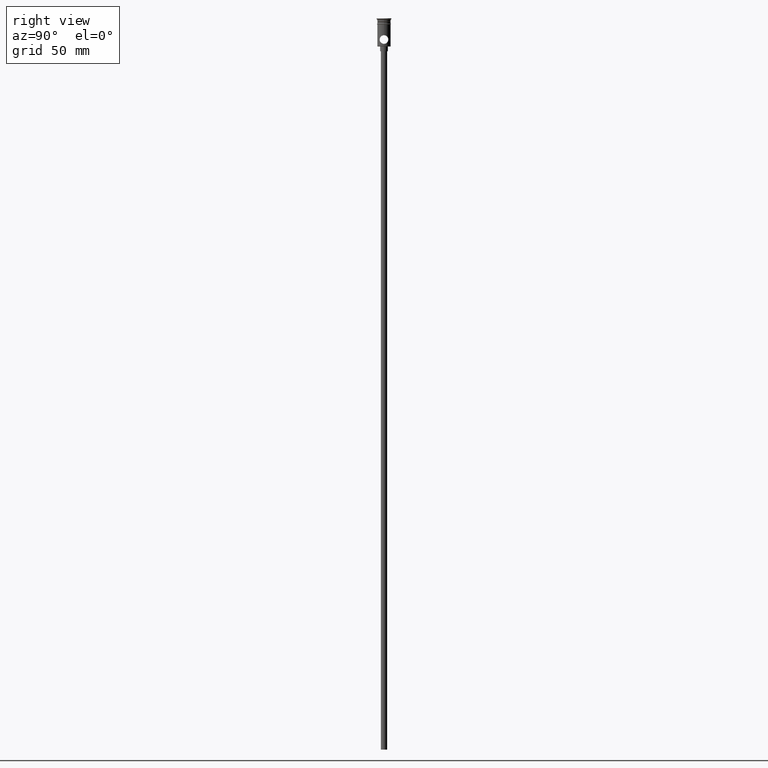
[diagram: clean part render]
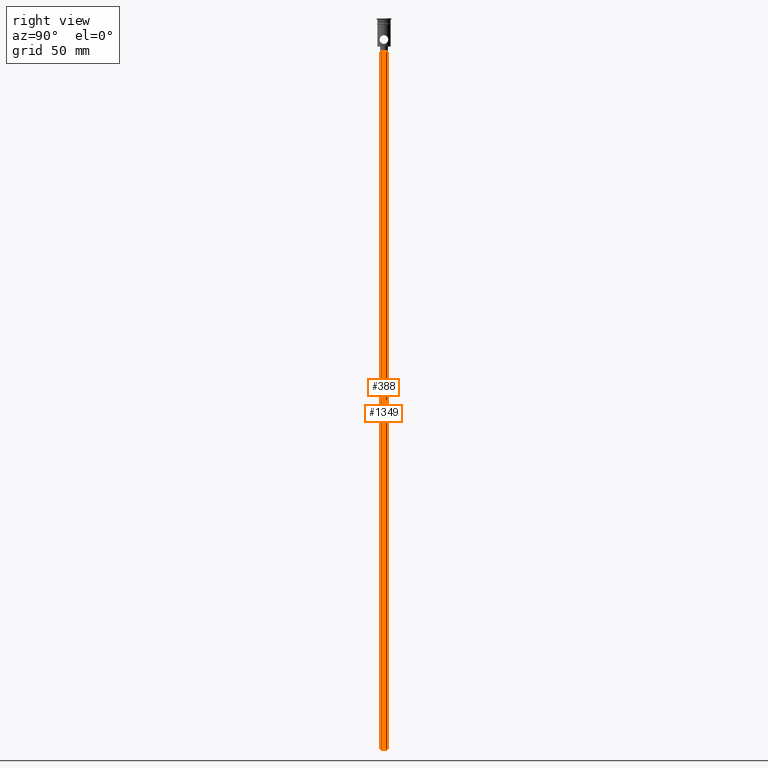
[diagram: same view with one multi-face feature highlighted, each face labeled with its STEP entity id]
A machine part, right view. The highlighted faces form ONE feature: a constant-radius fillet chain: 2 tangent blend faces with common blend radius 2 mm. The faces share edges in the B-rep.
Their STEP definitions:
[1] entity #1349 (Cylinder):
#4 = CARTESIAN_POINT ( 'NONE',  ( 0.000000000000000000, 0.000000000000000000, -468.0000000000000000 ) ) ;
#12 = DIRECTION ( 'NONE',  ( 0.000000000000000000, 0.000000000000000000, -1.000000000000000000 ) ) ;
#69 = AXIS2_PLACEMENT_3D ( 'NONE', #4, #12, #136 ) ;
#136 = DIRECTION ( 'NONE',  ( -1.000000000000000000, 0.000000000000000000, 0.000000000000000000 ) ) ;
#156 = EDGE_LOOP ( 'NONE', ( #275, #1180, #992, #912 ) ) ;
#207 = EDGE_CURVE ( 'NONE', #1131, #1214, #537, .T. ) ;
#228 = CARTESIAN_POINT ( 'NONE',  ( 2.000000000000000000, 0.000000000000000000, -20.99999999999999645 ) ) ;
#250 = EDGE_CURVE ( 'NONE', #1240, #1410, #328, .T. ) ;
#275 = ORIENTED_EDGE ( 'NONE', *, *, #207, .F. ) ;
#317 = DIRECTION ( 'NONE',  ( 1.000000000000000000, 0.000000000000000000, 0.000000000000000000 ) ) ;
#328 = CIRCLE ( 'NONE', #1054, 2.000000000000000000 ) ;
#333 = CARTESIAN_POINT ( 'NONE',  ( 0.000000000000000000, 0.000000000000000000, -20.99999999999999645 ) ) ;
#351 = AXIS2_PLACEMENT_3D ( 'NONE', #847, #1211, #317 ) ;
#400 = LINE ( 'NONE', #1417, #420 ) ;
#402 = EDGE_CURVE ( 'NONE', #1214, #1410, #400, .T. ) ;
#420 = VECTOR ( 'NONE', #833, 1000.000000000000000 ) ;
#423 = LINE ( 'NONE', #1156, #1168 ) ;
#469 = EDGE_CURVE ( 'NONE', #1131, #1240, #423, .T. ) ;
#512 = CARTESIAN_POINT ( 'NONE',  ( 2.000000000000000000, 0.000000000000000000, -468.0000000000000000 ) ) ;
#537 = CIRCLE ( 'NONE', #69, 2.000000000000000000 ) ;
#579 = CARTESIAN_POINT ( 'NONE',  ( -2.000000000000000000, 2.449293598294706414E-16, -468.0000000000000000 ) ) ;
#780 = CYLINDRICAL_SURFACE ( 'NONE', #351, 2.000000000000000000 ) ;
#833 = DIRECTION ( 'NONE',  ( -0.000000000000000000, -0.000000000000000000, 1.000000000000000000 ) ) ;
#847 = CARTESIAN_POINT ( 'NONE',  ( 0.000000000000000000, 0.000000000000000000, -468.0000000000000000 ) ) ;
#869 = DIRECTION ( 'NONE',  ( 0.000000000000000000, 0.000000000000000000, -1.000000000000000000 ) ) ;
#912 = ORIENTED_EDGE ( 'NONE', *, *, #402, .F. ) ;
#992 = ORIENTED_EDGE ( 'NONE', *, *, #250, .T. ) ;
#1054 = AXIS2_PLACEMENT_3D ( 'NONE', #333, #869, #1312 ) ;
#1071 = DIRECTION ( 'NONE',  ( -0.000000000000000000, -0.000000000000000000, 1.000000000000000000 ) ) ;
#1131 = VERTEX_POINT ( 'NONE', #579 ) ;
#1156 = CARTESIAN_POINT ( 'NONE',  ( -2.000000000000000000, 2.449293598294706414E-16, -468.0000000000000000 ) ) ;
#1168 = VECTOR ( 'NONE', #1071, 1000.000000000000000 ) ;
#1180 = ORIENTED_EDGE ( 'NONE', *, *, #469, .T. ) ;
#1211 = DIRECTION ( 'NONE',  ( -0.000000000000000000, -0.000000000000000000, 1.000000000000000000 ) ) ;
#1214 = VERTEX_POINT ( 'NONE', #512 ) ;
#1240 = VERTEX_POINT ( 'NONE', #1388 ) ;
#1308 = FACE_OUTER_BOUND ( 'NONE', #156, .T. ) ;
#1312 = DIRECTION ( 'NONE',  ( -1.000000000000000000, 0.000000000000000000, 0.000000000000000000 ) ) ;
#1349 = ADVANCED_FACE ( 'NONE', ( #1308 ), #780, .T. ) ;
#1388 = CARTESIAN_POINT ( 'NONE',  ( -2.000000000000000000, 2.449293598294706414E-16, -20.99999999999999645 ) ) ;
#1410 = VERTEX_POINT ( 'NONE', #228 ) ;
#1417 = CARTESIAN_POINT ( 'NONE',  ( 2.000000000000000000, 0.000000000000000000, -468.0000000000000000 ) ) ;
[2] entity #388 (Cylinder):
#81 = CARTESIAN_POINT ( 'NONE',  ( 0.000000000000000000, 0.000000000000000000, -20.99999999999999645 ) ) ;
#144 = AXIS2_PLACEMENT_3D ( 'NONE', #392, #1294, #960 ) ;
#184 = DIRECTION ( 'NONE',  ( 0.000000000000000000, 0.000000000000000000, -1.000000000000000000 ) ) ;
#193 = DIRECTION ( 'NONE',  ( 0.000000000000000000, 0.000000000000000000, -1.000000000000000000 ) ) ;
#228 = CARTESIAN_POINT ( 'NONE',  ( 2.000000000000000000, 0.000000000000000000, -20.99999999999999645 ) ) ;
#348 = AXIS2_PLACEMENT_3D ( 'NONE', #81, #193, #1287 ) ;
#388 = ADVANCED_FACE ( 'NONE', ( #1384 ), #937, .T. ) ;
#392 = CARTESIAN_POINT ( 'NONE',  ( 0.000000000000000000, 0.000000000000000000, -468.0000000000000000 ) ) ;
#400 = LINE ( 'NONE', #1417, #420 ) ;
#402 = EDGE_CURVE ( 'NONE', #1214, #1410, #400, .T. ) ;
#420 = VECTOR ( 'NONE', #833, 1000.000000000000000 ) ;
#423 = LINE ( 'NONE', #1156, #1168 ) ;
#469 = EDGE_CURVE ( 'NONE', #1131, #1240, #423, .T. ) ;
#506 = EDGE_CURVE ( 'NONE', #1410, #1240, #924, .T. ) ;
#511 = AXIS2_PLACEMENT_3D ( 'NONE', #729, #184, #621 ) ;
#512 = CARTESIAN_POINT ( 'NONE',  ( 2.000000000000000000, 0.000000000000000000, -468.0000000000000000 ) ) ;
#551 = EDGE_CURVE ( 'NONE', #1214, #1131, #845, .T. ) ;
#579 = CARTESIAN_POINT ( 'NONE',  ( -2.000000000000000000, 2.449293598294706414E-16, -468.0000000000000000 ) ) ;
#621 = DIRECTION ( 'NONE',  ( -1.000000000000000000, 0.000000000000000000, 0.000000000000000000 ) ) ;
#729 = CARTESIAN_POINT ( 'NONE',  ( 0.000000000000000000, 0.000000000000000000, -468.0000000000000000 ) ) ;
#785 = ORIENTED_EDGE ( 'NONE', *, *, #506, .T. ) ;
#833 = DIRECTION ( 'NONE',  ( -0.000000000000000000, -0.000000000000000000, 1.000000000000000000 ) ) ;
#845 = CIRCLE ( 'NONE', #511, 2.000000000000000000 ) ;
#924 = CIRCLE ( 'NONE', #348, 2.000000000000000000 ) ;
#937 = CYLINDRICAL_SURFACE ( 'NONE', #144, 2.000000000000000000 ) ;
#960 = DIRECTION ( 'NONE',  ( 1.000000000000000000, 0.000000000000000000, 0.000000000000000000 ) ) ;
#1058 = ORIENTED_EDGE ( 'NONE', *, *, #402, .T. ) ;
#1071 = DIRECTION ( 'NONE',  ( -0.000000000000000000, -0.000000000000000000, 1.000000000000000000 ) ) ;
#1131 = VERTEX_POINT ( 'NONE', #579 ) ;
#1156 = CARTESIAN_POINT ( 'NONE',  ( -2.000000000000000000, 2.449293598294706414E-16, -468.0000000000000000 ) ) ;
#1163 = ORIENTED_EDGE ( 'NONE', *, *, #551, .F. ) ;
#1168 = VECTOR ( 'NONE', #1071, 1000.000000000000000 ) ;
#1214 = VERTEX_POINT ( 'NONE', #512 ) ;
#1240 = VERTEX_POINT ( 'NONE', #1388 ) ;
#1287 = DIRECTION ( 'NONE',  ( -1.000000000000000000, 0.000000000000000000, 0.000000000000000000 ) ) ;
#1294 = DIRECTION ( 'NONE',  ( -0.000000000000000000, -0.000000000000000000, 1.000000000000000000 ) ) ;
#1358 = ORIENTED_EDGE ( 'NONE', *, *, #469, .F. ) ;
#1384 = FACE_OUTER_BOUND ( 'NONE', #1425, .T. ) ;
#1388 = CARTESIAN_POINT ( 'NONE',  ( -2.000000000000000000, 2.449293598294706414E-16, -20.99999999999999645 ) ) ;
#1410 = VERTEX_POINT ( 'NONE', #228 ) ;
#1417 = CARTESIAN_POINT ( 'NONE',  ( 2.000000000000000000, 0.000000000000000000, -468.0000000000000000 ) ) ;
#1425 = EDGE_LOOP ( 'NONE', ( #1358, #1163, #1058, #785 ) ) ;